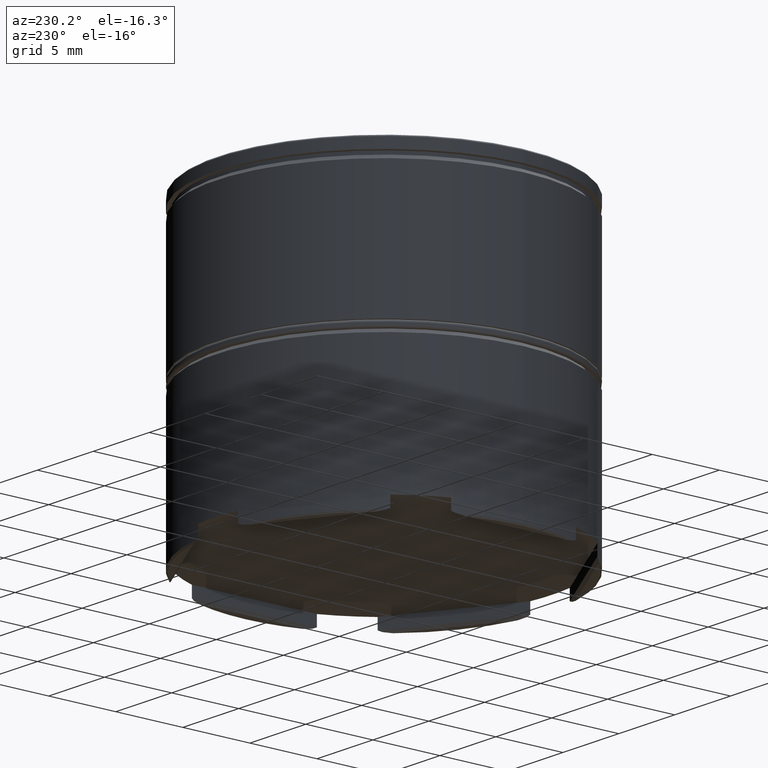
[diagram: clean part render]
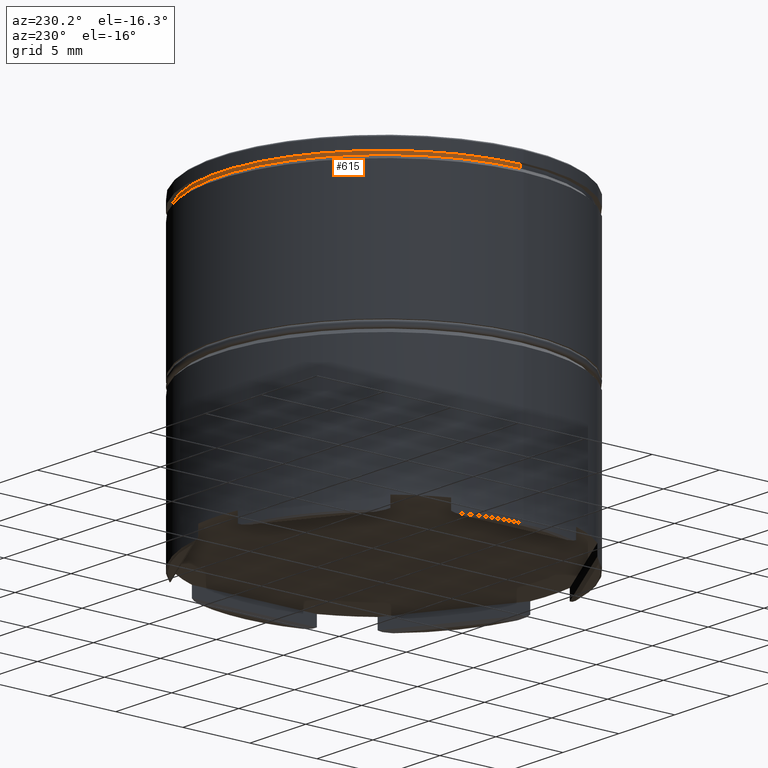
[diagram: same view with one face highlighted and labeled with its STEP entity id]
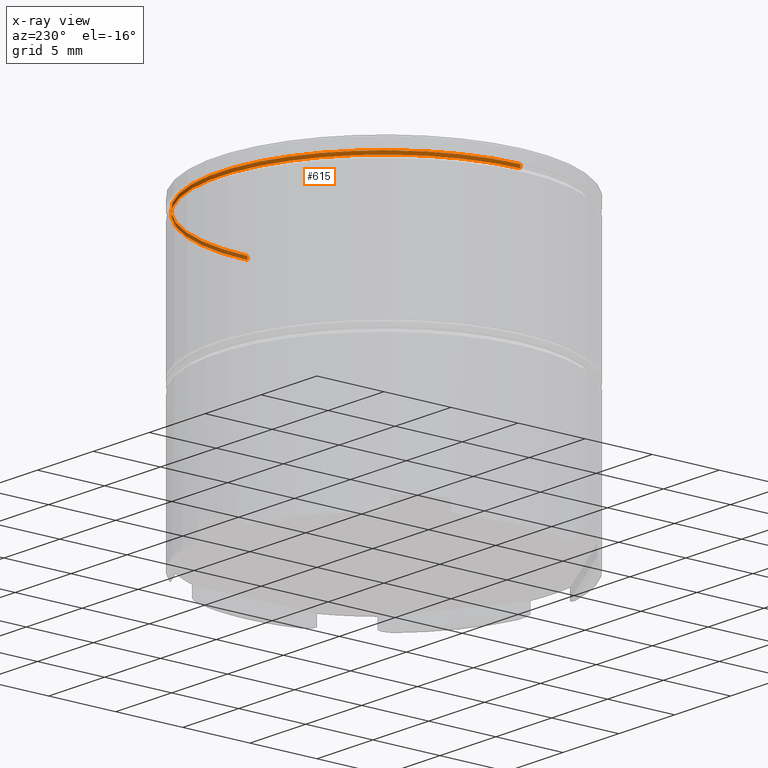
[diagram: x-ray of the same camera — body ghosted, the highlighted face saturated]
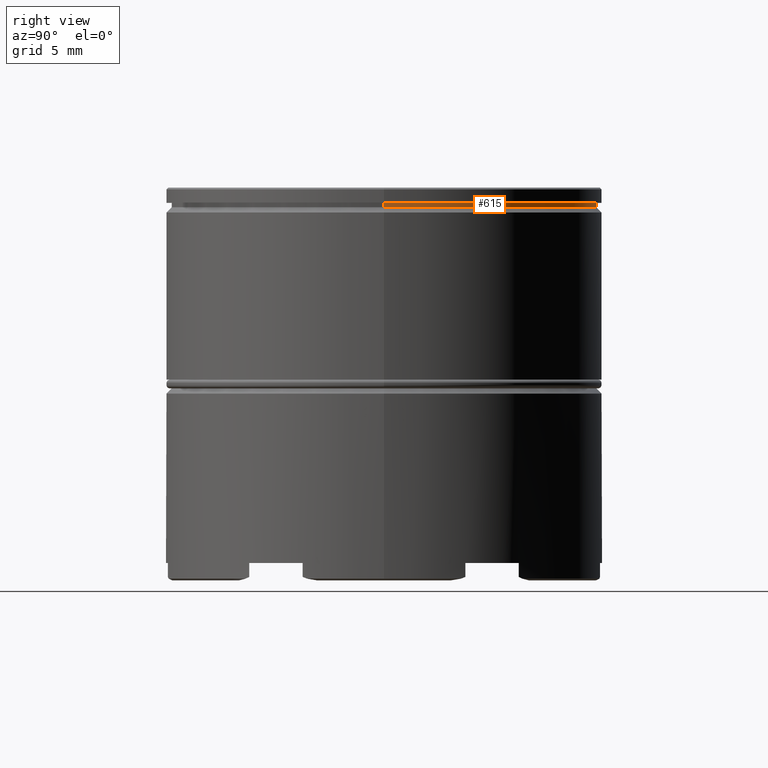
[diagram: same view with one face highlighted and labeled with its STEP entity id]
A machine part, auxiliary view. The second image highlights one B-rep face of the part: STEP entity #615.
The next image is the same camera in x-ray: the body ghosted, the highlighted face saturated — about 18% of this face is hidden behind the body in this view.
A second angle (right view) of the same face is appended — the face is thin or edge-on in the first view.
In plain terms, the highlighted cylindrical surface (partial cylindrical patch) has radius 12.2 mm, axis along (-0, -0, 1).
Its self-contained STEP definition (entity closure, byte-faithful):
#6 = ORIENTED_EDGE ( 'NONE', *, *, #715, .T. ) ;
#52 = CIRCLE ( 'NONE', #1128, 12.20000000000000107 ) ;
#59 = CARTESIAN_POINT ( 'NONE',  ( -12.20000000000000107, 1.494069094959771056E-15, -1.125000000000000222 ) ) ;
#63 = VERTEX_POINT ( 'NONE', #59 ) ;
#344 = CARTESIAN_POINT ( 'NONE',  ( 0.000000000000000000, 0.000000000000000000, 0.000000000000000000 ) ) ;
#389 = DIRECTION ( 'NONE',  ( -0.000000000000000000, -0.000000000000000000, 1.000000000000000000 ) ) ;
#425 = EDGE_LOOP ( 'NONE', ( #6, #809, #1597, #724 ) ) ;
#455 = DIRECTION ( 'NONE',  ( -0.000000000000000000, -0.000000000000000000, 1.000000000000000000 ) ) ;
#463 = EDGE_CURVE ( 'NONE', #63, #788, #1425, .T. ) ;
#508 = DIRECTION ( 'NONE',  ( -0.000000000000000000, -0.000000000000000000, 1.000000000000000000 ) ) ;
#519 = CARTESIAN_POINT ( 'NONE',  ( 12.20000000000000107, 0.000000000000000000, -0.8749999999999998890 ) ) ;
#532 = DIRECTION ( 'NONE',  ( 1.000000000000000000, 0.000000000000000000, 0.000000000000000000 ) ) ;
#543 = DIRECTION ( 'NONE',  ( 1.000000000000000000, 0.000000000000000000, 0.000000000000000000 ) ) ;
#615 = ADVANCED_FACE ( 'NONE', ( #1490 ), #1498, .T. ) ;
#646 = CARTESIAN_POINT ( 'NONE',  ( 0.000000000000000000, 0.000000000000000000, -1.125000000000000222 ) ) ;
#715 = EDGE_CURVE ( 'NONE', #1622, #63, #1372, .T. ) ;
#724 = ORIENTED_EDGE ( 'NONE', *, *, #1160, .F. ) ;
#788 = VERTEX_POINT ( 'NONE', #1156 ) ;
#807 = AXIS2_PLACEMENT_3D ( 'NONE', #646, #389, #543 ) ;
#809 = ORIENTED_EDGE ( 'NONE', *, *, #463, .T. ) ;
#884 = DIRECTION ( 'NONE',  ( -0.000000000000000000, -0.000000000000000000, 1.000000000000000000 ) ) ;
#921 = CARTESIAN_POINT ( 'NONE',  ( 0.000000000000000000, 0.000000000000000000, -0.8749999999999998890 ) ) ;
#1013 = LINE ( 'NONE', #1522, #1099 ) ;
#1036 = CARTESIAN_POINT ( 'NONE',  ( -12.20000000000000107, 1.494069094959771056E-15, 0.000000000000000000 ) ) ;
#1099 = VECTOR ( 'NONE', #884, 1000.000000000000000 ) ;
#1128 = AXIS2_PLACEMENT_3D ( 'NONE', #921, #508, #532 ) ;
#1132 = DIRECTION ( 'NONE',  ( -0.000000000000000000, -0.000000000000000000, 1.000000000000000000 ) ) ;
#1139 = DIRECTION ( 'NONE',  ( 1.000000000000000000, 0.000000000000000000, 0.000000000000000000 ) ) ;
#1156 = CARTESIAN_POINT ( 'NONE',  ( -12.20000000000000107, 1.494069094959771056E-15, -0.8749999999999998890 ) ) ;
#1160 = EDGE_CURVE ( 'NONE', #1622, #1228, #1013, .T. ) ;
#1179 = EDGE_CURVE ( 'NONE', #1228, #788, #52, .T. ) ;
#1228 = VERTEX_POINT ( 'NONE', #519 ) ;
#1290 = AXIS2_PLACEMENT_3D ( 'NONE', #344, #1132, #1139 ) ;
#1372 = CIRCLE ( 'NONE', #807, 12.20000000000000107 ) ;
#1425 = LINE ( 'NONE', #1036, #1557 ) ;
#1467 = CARTESIAN_POINT ( 'NONE',  ( 12.20000000000000107, 0.000000000000000000, -1.125000000000000222 ) ) ;
#1490 = FACE_OUTER_BOUND ( 'NONE', #425, .T. ) ;
#1498 = CYLINDRICAL_SURFACE ( 'NONE', #1290, 12.20000000000000107 ) ;
#1522 = CARTESIAN_POINT ( 'NONE',  ( 12.20000000000000107, 0.000000000000000000, 0.000000000000000000 ) ) ;
#1557 = VECTOR ( 'NONE', #455, 1000.000000000000000 ) ;
#1597 = ORIENTED_EDGE ( 'NONE', *, *, #1179, .F. ) ;
#1622 = VERTEX_POINT ( 'NONE', #1467 ) ;